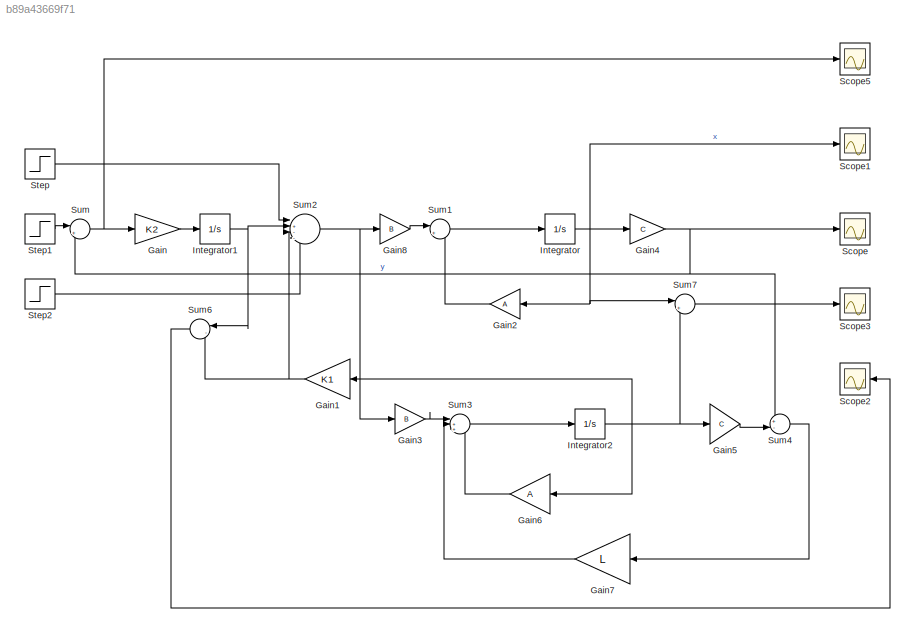
MODEL slx_b89a43669f71
KIND model
CONFIG AbsTol = auto
CONFIG EnableMultiTasking = off
CONFIG FixedStep = auto
CONFIG MaxStep = auto
CONFIG MinStep = auto
CONFIG RelTol = 1e-3
CONFIG SampleTimeConstraint = Unconstrained
CONFIG SolverName = VariableStepAuto
CONFIG StartTime = 0.0
CONFIG StopTime = 20
BLOCK [Gain] Gain
  Gain = K2
  Multiplication = Matrix(K*u)
BLOCK [Gain] Gain1
  Gain = K1
  Multiplication = Matrix(K*u)
BLOCK [Gain] Gain2
  Gain = A
  Multiplication = Matrix(K*u)
BLOCK [Gain] Gain3
  Gain = B
  Multiplication = Matrix(K*u)
BLOCK [Gain] Gain4
  Gain = C
  Multiplication = Matrix(K*u)
BLOCK [Gain] Gain5
  Gain = C
  Multiplication = Matrix(K*u)
BLOCK [Gain] Gain6
  Gain = A
  Multiplication = Matrix(K*u)
BLOCK [Gain] Gain7
  Gain = L
  Multiplication = Matrix(K*u)
BLOCK [Gain] Gain8
  Gain = B
  Multiplication = Matrix(K*u)
BLOCK [Integrator] Integrator
  InitialCondition = x0
BLOCK [Integrator] Integrator1
BLOCK [Integrator] Integrator2
BLOCK [Scope] Scope
  AttributesFormatString = output
  Floating = off
  NumInputPorts = 1
  ScopeSpecificationString = Simulink.scopes.TimeScopeBlockCfg('CurrentConfiguration', extmgr.ConfigurationSet(extmgr.Configuration('Core','General UI',true),extmgr.Configuration('Core','Source UI',true),extmgr.Configuration('Sources','WiredSimulink',true),extmgr.Configuration('Visuals','Time Domain',true,'SerializedDisplays',{struct('MinYLimReal','-0.14349','MaxYLimReal','0.29145','YLabelReal','','MinYLimMag','0.00000','MaxY...<+1381ch>
BLOCK [Scope] Scope1
  AttributesFormatString = state
  Floating = off
  NumInputPorts = 1
  ScopeSpecificationString = Simulink.scopes.TimeScopeBlockCfg('CurrentConfiguration', extmgr.ConfigurationSet(extmgr.Configuration('Core','General UI',true),extmgr.Configuration('Core','Source UI',true),extmgr.Configuration('Sources','WiredSimulink',true,'DataLoggingVariableName','ScopeData1'),extmgr.Configuration('Visuals','Time Domain',true,'SerializedDisplays',{struct('MinYLimReal','-1.47677','MaxYLimReal','3.29097','YLab...<+1418ch>
BLOCK [Scope] Scope2
  AttributesFormatString = control signal
  Floating = off
  NumInputPorts = 1
  ScopeSpecificationString = Simulink.scopes.TimeScopeBlockCfg('CurrentConfiguration', extmgr.ConfigurationSet(extmgr.Configuration('Core','General UI',true),extmgr.Configuration('Core','Source UI',true),extmgr.Configuration('Sources','WiredSimulink',true,'DataLoggingVariableName','ScopeData1'),extmgr.Configuration('Visuals','Time Domain',true,'SerializedDisplays',{struct('MinYLimReal','-1.40161','MaxYLimReal','0.30235','YLab...<+1445ch>
BLOCK [Scope] Scope3
  AttributesFormatString = state estimate error
  Floating = off
  NumInputPorts = 1
  ScopeSpecificationString = Simulink.scopes.TimeScopeBlockCfg('CurrentConfiguration', extmgr.ConfigurationSet(extmgr.Configuration('Core','General UI',true),extmgr.Configuration('Core','Source UI',true),extmgr.Configuration('Sources','WiredSimulink',true,'DataLoggingVariableName','ScopeData2'),extmgr.Configuration('Visuals','Time Domain',true,'SerializedDisplays',{struct('MinYLimReal','-1.225','MaxYLimReal','1.025','YLabelRe...<+1453ch>
BLOCK [Scope] Scope5
  AttributesFormatString = output error
  Floating = off
  NumInputPorts = 1
  ScopeSpecificationString = Simulink.scopes.TimeScopeBlockCfg('CurrentConfiguration', extmgr.ConfigurationSet(extmgr.Configuration('Core','General UI',true),extmgr.Configuration('Core','Source UI',true),extmgr.Configuration('Sources','WiredSimulink',true,'DataLoggingVariableName','ScopeData1'),extmgr.Configuration('Visuals','Time Domain',true,'SerializedDisplays',{struct('MinYLimReal','-0.48755','MaxYLimReal','3.03421','YLab...<+1380ch>
BLOCK [Step] Step
  After = w
  AttributesFormatString = disturbance
  Before = [0;0]
  SampleTime = 0
  Time = 10
BLOCK [Step] Step1
  After = [10,20,30]
  AttributesFormatString = set point
  Before = [0;0;0]
  SampleTime = 0
  Time = 0
BLOCK [Step] Step2
  After = [1,0]
  AttributesFormatString = step input
  Before = [0,0]
  SampleTime = 0
  Time = 0
BLOCK [Sum] Sum
  Inputs = |+-
BLOCK [Sum] Sum1
  Inputs = |++
BLOCK [Sum] Sum2
  Inputs = |+--+
BLOCK [Sum] Sum3
  Inputs = |+++
BLOCK [Sum] Sum4
  Inputs = +-|
BLOCK [Sum] Sum6
  Inputs = |--
BLOCK [Sum] Sum7
  Inputs = |+-
NET Gain1:1 -> Sum2:3, Sum6:2
LINE Gain2:1 -> Sum1:2
LINE Gain3:1 -> Sum3:1
NET Gain4:1 -> Scope:1, Sum4:1, Sum:2
LINE Gain5:1 -> Sum4:2
LINE Gain6:1 -> Sum3:3
LINE Gain7:1 -> Sum3:2
LINE Gain8:1 -> Sum1:1
LINE Gain:1 -> Integrator1:1
NET Integrator1:1 -> Sum2:2, Sum6:1
NET Integrator2:1 -> Gain1:1, Gain5:1, Gain6:1, Sum7:2
NET Integrator:1 -> Gain2:1, Gain4:1, Scope1:1, Sum7:1
LINE Step1:1 -> Sum:1
LINE Step2:1 -> Sum2:4
LINE Step:1 -> Sum2:1
LINE Sum1:1 -> Integrator:1
NET Sum2:1 -> Gain3:1, Gain8:1
LINE Sum3:1 -> Integrator2:1
LINE Sum4:1 -> Gain7:1
LINE Sum6:1 -> Scope2:1
LINE Sum7:1 -> Scope3:1
NET Sum:1 -> Gain:1, Scope5:1
note: NET lines group one-source signal fan-out (src -> all destinations, sorted); 1:1 wires keep LINE
